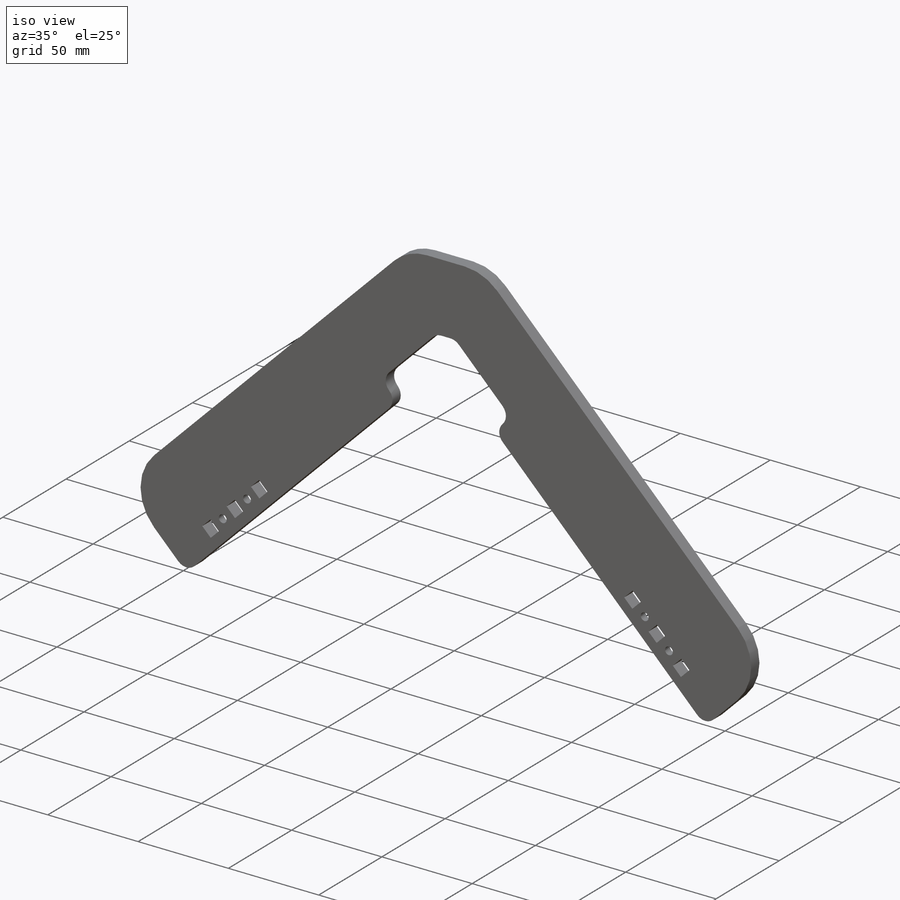
[diagram: iso view]
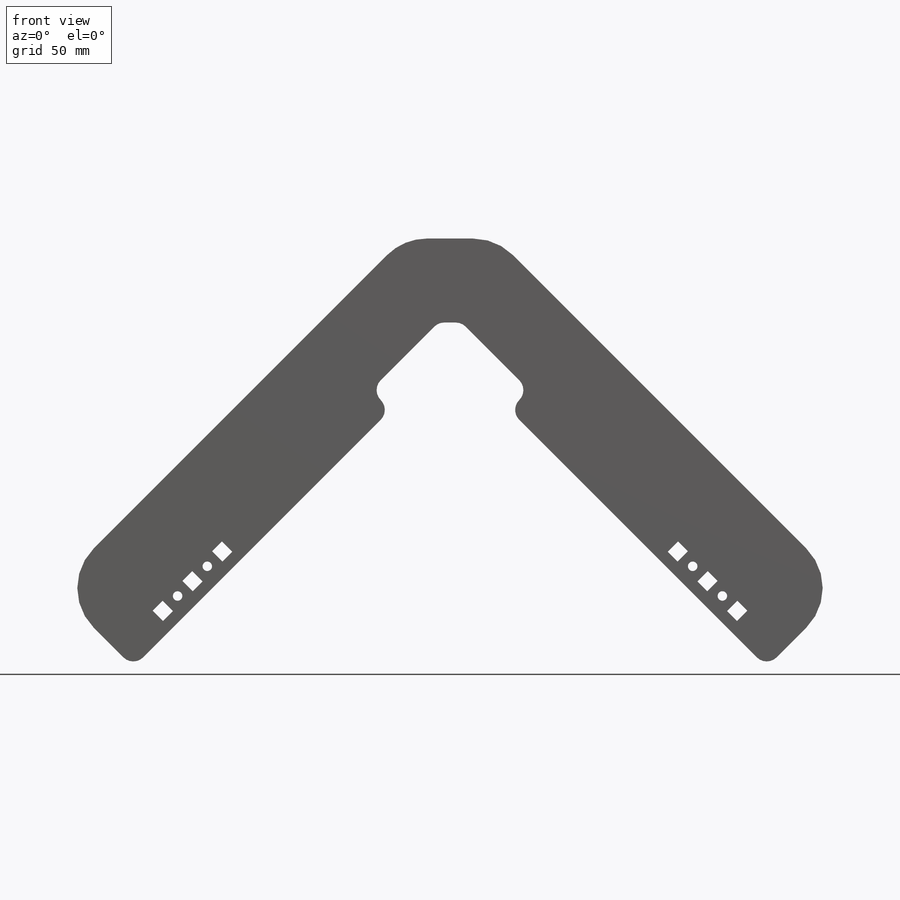
[diagram: front view]
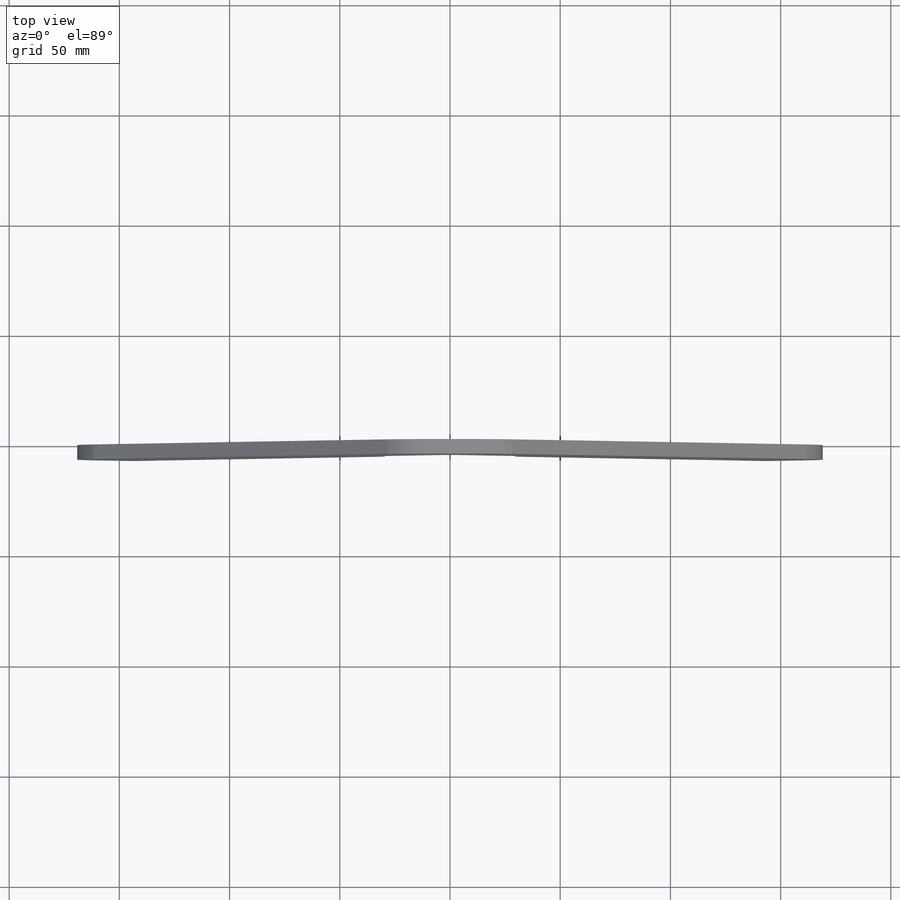
[diagram: top view]
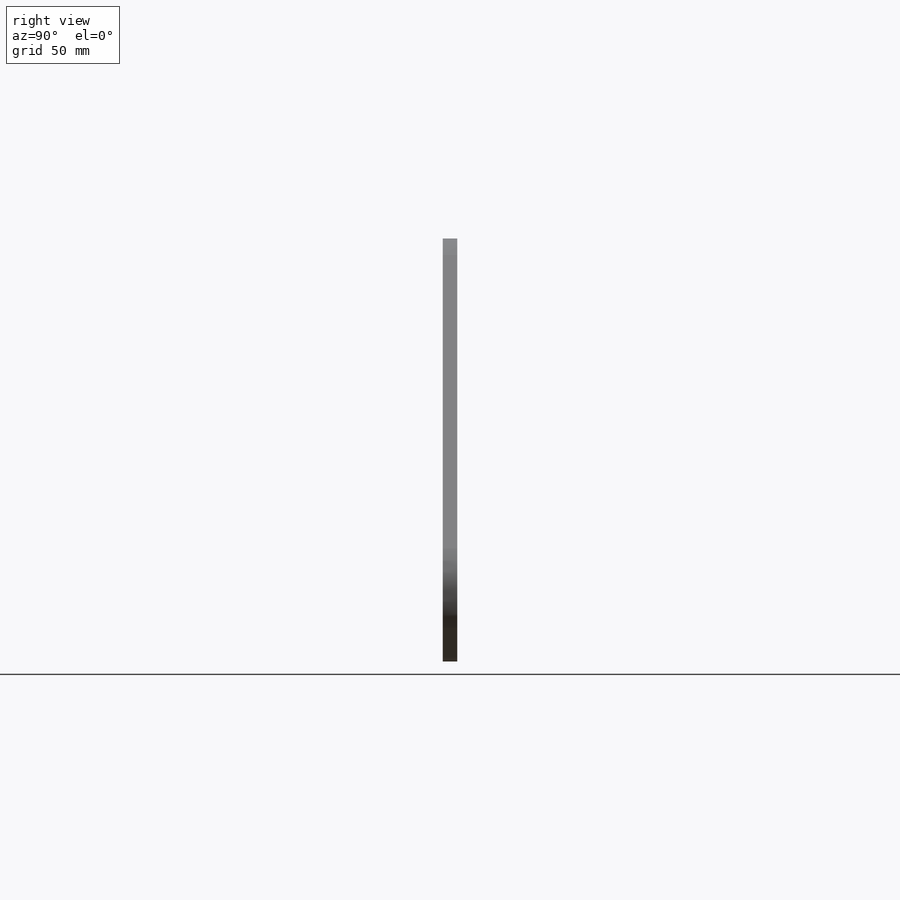
[diagram: right view]
SOLIDWORKS PART (.sldprt)
format: sldprt  version: not decoded by parser v0  size: 558,592 bytes
history: native  units: mm
features: sketch x5, cut_extrude x2, fillet x2, material x1, extrude x1, hole x1 (+12 scaffold rows collapsed)
feature tree (24):
  scaffold x12  (default folders/planes/origin — collapsed)
  material  "Acrylic (BLUE)"
  sketch  "Sketch1"  dims[c1.D1=50.8mm c1.D2=76.2mm c2.D1=76.2mm c2.D2=~260.105941mm c3.D2=45.0deg c3.D3=~421.870407mm c4.D3=45.0deg c4.D4=203.2mm c4.D1=50.8mm c4.D5=50.8mm]
  extrude  "Boss-Extrude1"  Depth=6.604mm
  sketch  "Sketch2"  dims[D1=12.7mm D2=38.1mm D3=12.7mm]
  cut_extrude  "Cut-Extrude1"  [1 undecoded]
  fillet  "Fillet1"  Radius=6.35mm
  fillet  "Fillet2"  Radius=25.4mm
  sketch  "Sketch3"  dims[c1.D1=4.3053mm c1.D2=6.35mm c1.D3=6.604mm c1.D4=12.7mm c2.D1=6.35mm c2.D2=45.0deg c3.D2=8.636mm c3.D1=139.7mm]
  cut_extrude  "Cut-Extrude2"  [1 undecoded]
  hole  "CSK for #8 Flat Head Socket Cap Screw1"  Diameter=4.3053mm Depth=6.604mm
  sketch  "Sketch5"
  sketch  "Sketch4"  dims[hole-wizard template sketch: 60 standard entries collapsed; hole parameters above]
decode coverage: 8 of 11 modeling features carry decoded parameters
note: ~ marks probable driven/reference dimensions
note: 2 parameter values undecoded
note: suppression state not decoded; provenance and decode notes live in map.json
